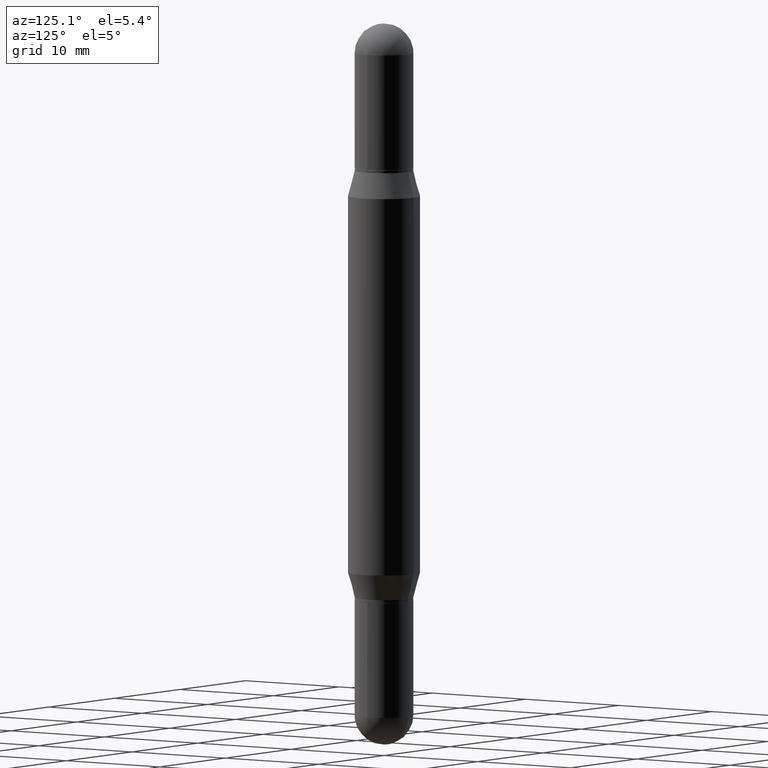
[diagram: clean part render]
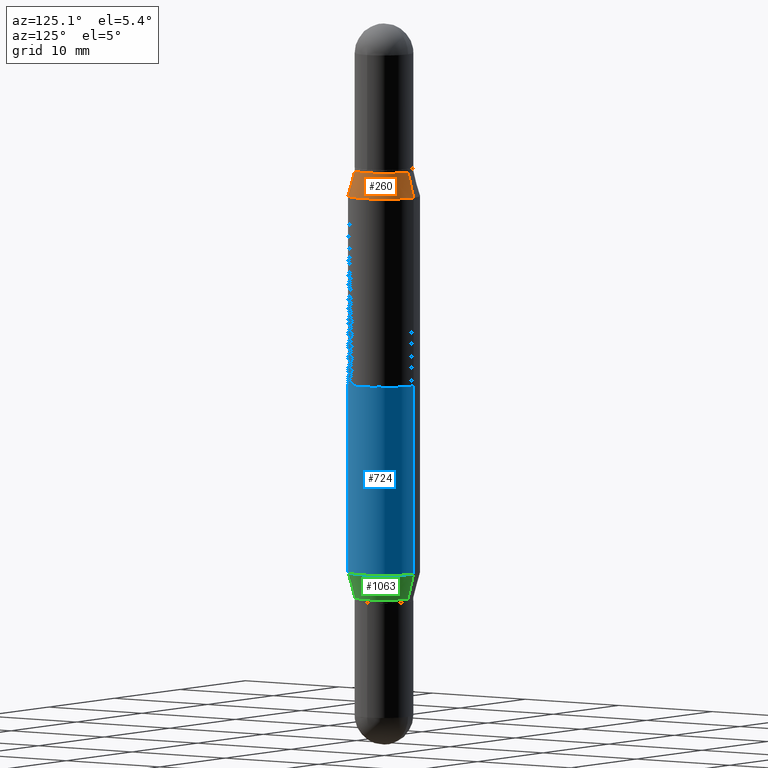
[diagram: same view with three faces highlighted in distinct colors, each labeled with its STEP entity id]
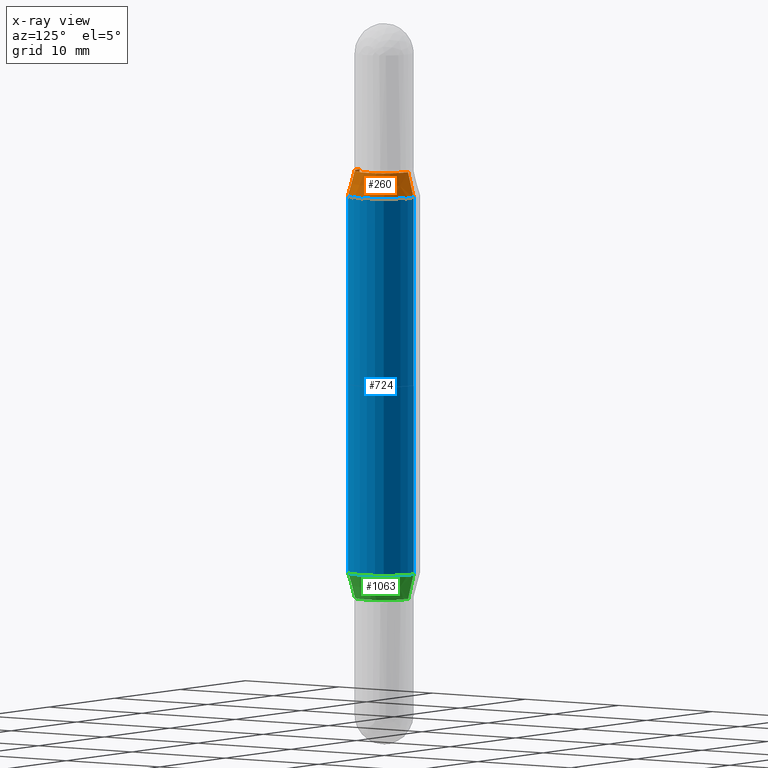
[diagram: x-ray of the same camera — body ghosted, the three highlighted faces saturated]
A machine part, auxiliary view with three faces highlighted in distinct colors.
The next image is the same camera in x-ray (body ghosted, the three faces saturated) — at least one of them is partly hidden behind the body in this view.
Their STEP definitions:

[orange] entity #260 — the highlighted conical surface has half-angle 15 deg.
#23 = VECTOR ( 'NONE', #721, 39.37007874015748143 ) ;
#34 = DIRECTION ( 'NONE',  ( -6.982962677686266711E-15, -1.000000000000000000, 3.362688323072702491E-15 ) ) ;
#58 = CIRCLE ( 'NONE', #126, 0.1250000000000000000 ) ;
#96 = CARTESIAN_POINT ( 'NONE',  ( 6.966835716737476402E-16, 0.1015499999999981973, -0.5100000000000003419 ) ) ;
#100 = CARTESIAN_POINT ( 'NONE',  ( 4.867118161721185703E-29, -1.788527271859794009E-15, -0.5100000000000000089 ) ) ;
#103 = DIRECTION ( 'NONE',  ( 2.445788020965419490E-29, 3.480071600711770532E-15, 1.000000000000000000 ) ) ;
#119 = ORIENTED_EDGE ( 'NONE', *, *, #312, .T. ) ;
#126 = AXIS2_PLACEMENT_3D ( 'NONE', #886, #103, #543 ) ;
#150 = LINE ( 'NONE', #828, #630 ) ;
#223 = ORIENTED_EDGE ( 'NONE', *, *, #1081, .F. ) ;
#260 = ADVANCED_FACE ( 'NONE', ( #882 ), #801, .T. ) ;
#267 = AXIS2_PLACEMENT_3D ( 'NONE', #100, #520, #344 ) ;
#312 = EDGE_CURVE ( 'NONE', #1074, #396, #58, .T. ) ;
#317 = EDGE_CURVE ( 'NONE', #319, #396, #603, .T. ) ;
#319 = VERTEX_POINT ( 'NONE', #96 ) ;
#327 = AXIS2_PLACEMENT_3D ( 'NONE', #885, #463, #34 ) ;
#344 = DIRECTION ( 'NONE',  ( -6.982962677686266711E-15, -1.000000000000000000, 3.362688323072702491E-15 ) ) ;
#351 = ORIENTED_EDGE ( 'NONE', *, *, #317, .F. ) ;
#396 = VERTEX_POINT ( 'NONE', #758 ) ;
#431 = EDGE_CURVE ( 'NONE', #480, #1074, #150, .T. ) ;
#449 = CARTESIAN_POINT ( 'NONE',  ( 6.966835716737475416E-16, 0.1015499999999981973, -0.5100000000000003419 ) ) ;
#463 = DIRECTION ( 'NONE',  ( 2.445788020965419490E-29, 3.480071600711770532E-15, 1.000000000000000000 ) ) ;
#480 = VERTEX_POINT ( 'NONE', #651 ) ;
#520 = DIRECTION ( 'NONE',  ( -2.445788020965419490E-29, -3.480071600711770532E-15, -1.000000000000000000 ) ) ;
#543 = DIRECTION ( 'NONE',  ( -6.982962677686265922E-15, -1.000000000000000000, 3.278217592397115862E-15 ) ) ;
#603 = LINE ( 'NONE', #449, #23 ) ;
#630 = VECTOR ( 'NONE', #833, 39.37007874015748143 ) ;
#651 = CARTESIAN_POINT ( 'NONE',  ( -7.091198599189916755E-16, -0.1015500000000017777, -0.5099999999999996758 ) ) ;
#720 = CARTESIAN_POINT ( 'NONE',  ( -8.728703347107367960E-16, -0.1250000000000021094, -0.5975165914374894749 ) ) ;
#721 = DIRECTION ( 'NONE',  ( 1.775627540710965497E-15, 0.2588190451025182415, -0.9659258262890689783 ) ) ;
#733 = CIRCLE ( 'NONE', #327, 0.1015499999999999875 ) ;
#737 = ORIENTED_EDGE ( 'NONE', *, *, #431, .T. ) ;
#758 = CARTESIAN_POINT ( 'NONE',  ( 8.575622497214877909E-16, 0.1249999999999979045, -0.5975165914374903631 ) ) ;
#801 = CONICAL_SURFACE ( 'NONE', #267, 0.1015499999999999875, 0.2617993877991502960 ) ;
#828 = CARTESIAN_POINT ( 'NONE',  ( -7.091198599189916755E-16, -0.1015500000000017777, -0.5099999999999996758 ) ) ;
#833 = DIRECTION ( 'NONE',  ( -1.807323732225330534E-15, -0.2588190451025250138, -0.9659258262890670910 ) ) ;
#882 = FACE_OUTER_BOUND ( 'NONE', #1056, .T. ) ;
#885 = CARTESIAN_POINT ( 'NONE',  ( 4.867118161721185703E-29, -1.788527271859794009E-15, -0.5100000000000000089 ) ) ;
#886 = CARTESIAN_POINT ( 'NONE',  ( 4.653071130747647170E-29, -2.093091276312497727E-15, -0.5975165914374899190 ) ) ;
#1056 = EDGE_LOOP ( 'NONE', ( #351, #223, #737, #119 ) ) ;
#1074 = VERTEX_POINT ( 'NONE', #720 ) ;
#1081 = EDGE_CURVE ( 'NONE', #480, #319, #733, .T. ) ;

[blue] entity #724 — the highlighted cylindrical surface (edge-blend (fillet) strip) has radius 3.175 mm, axis along (-0, -0, -1).
#68 = VERTEX_POINT ( 'NONE', #153 ) ;
#102 = EDGE_LOOP ( 'NONE', ( #582, #804, #188, #633 ) ) ;
#104 = CARTESIAN_POINT ( 'NONE',  ( 0.000000000000000000, -8.713869757276216901E-15, -2.500000000000000000 ) ) ;
#120 = CYLINDRICAL_SURFACE ( 'NONE', #1022, 0.1250000000000000000 ) ;
#135 = EDGE_CURVE ( 'NONE', #287, #68, #1111, .T. ) ;
#153 = CARTESIAN_POINT ( 'NONE',  ( 8.575622497214877909E-16, 0.1249999999999979045, -0.5975165914374903631 ) ) ;
#180 = AXIS2_PLACEMENT_3D ( 'NONE', #371, #635, #817 ) ;
#188 = ORIENTED_EDGE ( 'NONE', *, *, #243, .T. ) ;
#243 = EDGE_CURVE ( 'NONE', #287, #645, #807, .T. ) ;
#287 = VERTEX_POINT ( 'NONE', #957 ) ;
#371 = CARTESIAN_POINT ( 'NONE',  ( 4.653071130747647170E-29, -6.641615629110385022E-15, -1.902483408562510192 ) ) ;
#376 = AXIS2_PLACEMENT_3D ( 'NONE', #1032, #938, #502 ) ;
#418 = VECTOR ( 'NONE', #870, 39.37007874015748143 ) ;
#470 = DIRECTION ( 'NONE',  ( -2.445788020965419490E-29, -3.480071600711770532E-15, -1.000000000000000000 ) ) ;
#490 = VECTOR ( 'NONE', #527, 39.37007874015748143 ) ;
#502 = DIRECTION ( 'NONE',  ( -6.982962677686265922E-15, -1.000000000000000000, 3.278217592397115862E-15 ) ) ;
#527 = DIRECTION ( 'NONE',  ( -2.445788020965419210E-29, -3.480071600711770532E-15, -1.000000000000000000 ) ) ;
#569 = VERTEX_POINT ( 'NONE', #789 ) ;
#582 = ORIENTED_EDGE ( 'NONE', *, *, #587, .F. ) ;
#587 = EDGE_CURVE ( 'NONE', #68, #569, #771, .T. ) ;
#633 = ORIENTED_EDGE ( 'NONE', *, *, #1109, .T. ) ;
#635 = DIRECTION ( 'NONE',  ( -2.445788020965419490E-29, 3.491024205109203305E-15, 1.000000000000000000 ) ) ;
#645 = VERTEX_POINT ( 'NONE', #1066 ) ;
#697 = CARTESIAN_POINT ( 'NONE',  ( -8.728703347107832402E-16, -0.1250000000000087153, -2.499999999999999556 ) ) ;
#713 = CIRCLE ( 'NONE', #180, 0.1250000000000000000 ) ;
#724 = ADVANCED_FACE ( 'NONE', ( #904 ), #120, .T. ) ;
#735 = DIRECTION ( 'NONE',  ( -6.982962677686265922E-15, -1.000000000000000000, 4.370956789862821150E-15 ) ) ;
#771 = LINE ( 'NONE', #1039, #418 ) ;
#789 = CARTESIAN_POINT ( 'NONE',  ( 8.575622497214719151E-16, 0.1249999999999933525, -1.902483408562510636 ) ) ;
#804 = ORIENTED_EDGE ( 'NONE', *, *, #135, .F. ) ;
#807 = LINE ( 'NONE', #697, #490 ) ;
#817 = DIRECTION ( 'NONE',  ( -6.982962677686265922E-15, -1.000000000000000000, 4.370956789862821150E-15 ) ) ;
#870 = DIRECTION ( 'NONE',  ( -2.445788020965419210E-29, -3.480071600711770532E-15, -1.000000000000000000 ) ) ;
#904 = FACE_OUTER_BOUND ( 'NONE', #102, .T. ) ;
#938 = DIRECTION ( 'NONE',  ( 2.445788020965419490E-29, 3.480071600711770532E-15, 1.000000000000000000 ) ) ;
#957 = CARTESIAN_POINT ( 'NONE',  ( -8.728703347107367960E-16, -0.1250000000000021094, -0.5975165914374894749 ) ) ;
#1022 = AXIS2_PLACEMENT_3D ( 'NONE', #104, #470, #735 ) ;
#1032 = CARTESIAN_POINT ( 'NONE',  ( 4.653071130747647170E-29, -2.093091276312497727E-15, -0.5975165914374899190 ) ) ;
#1039 = CARTESIAN_POINT ( 'NONE',  ( 8.575622497214413467E-16, 0.1249999999999912847, -2.500000000000000444 ) ) ;
#1066 = CARTESIAN_POINT ( 'NONE',  ( -8.728703347107365988E-16, -0.1250000000000066336, -1.902483408562509748 ) ) ;
#1109 = EDGE_CURVE ( 'NONE', #645, #569, #713, .T. ) ;
#1111 = CIRCLE ( 'NONE', #376, 0.1250000000000000000 ) ;

[green] entity #1063 — the highlighted conical surface has half-angle 15 deg.
#27 = VECTOR ( 'NONE', #331, 39.37007874015748143 ) ;
#180 = AXIS2_PLACEMENT_3D ( 'NONE', #371, #635, #817 ) ;
#185 = CARTESIAN_POINT ( 'NONE',  ( 4.867118161721185703E-29, -6.947138168167315831E-15, -1.989999999999999991 ) ) ;
#239 = LINE ( 'NONE', #557, #1094 ) ;
#292 = ORIENTED_EDGE ( 'NONE', *, *, #950, .F. ) ;
#331 = DIRECTION ( 'NONE',  ( -1.807323732225330534E-15, -0.2588190451025182415, 0.9659258262890689783 ) ) ;
#353 = FACE_OUTER_BOUND ( 'NONE', #472, .T. ) ;
#371 = CARTESIAN_POINT ( 'NONE',  ( 4.653071130747647170E-29, -6.641615629110385022E-15, -1.902483408562510192 ) ) ;
#411 = CARTESIAN_POINT ( 'NONE',  ( -7.091198599189916755E-16, -0.1015500000000069403, -1.989999999999999769 ) ) ;
#457 = CIRCLE ( 'NONE', #1096, 0.1015499999999999875 ) ;
#472 = EDGE_LOOP ( 'NONE', ( #1080, #884, #657, #292 ) ) ;
#557 = CARTESIAN_POINT ( 'NONE',  ( 7.215561481644301649E-16, 0.1015499999999930347, -1.990000000000000435 ) ) ;
#558 = CONICAL_SURFACE ( 'NONE', #839, 0.1015499999999999875, 0.2617993877991502960 ) ;
#569 = VERTEX_POINT ( 'NONE', #789 ) ;
#635 = DIRECTION ( 'NONE',  ( -2.445788020965419490E-29, 3.491024205109203305E-15, 1.000000000000000000 ) ) ;
#642 = DIRECTION ( 'NONE',  ( -2.445788020965419490E-29, 3.491024205109203305E-15, 1.000000000000000000 ) ) ;
#645 = VERTEX_POINT ( 'NONE', #1066 ) ;
#657 = ORIENTED_EDGE ( 'NONE', *, *, #1109, .F. ) ;
#713 = CIRCLE ( 'NONE', #180, 0.1250000000000000000 ) ;
#772 = CARTESIAN_POINT ( 'NONE',  ( 4.867118161721185703E-29, -6.947138168167315831E-15, -1.989999999999999991 ) ) ;
#789 = CARTESIAN_POINT ( 'NONE',  ( 8.575622497214719151E-16, 0.1249999999999933525, -1.902483408562510636 ) ) ;
#794 = VERTEX_POINT ( 'NONE', #922 ) ;
#797 = EDGE_CURVE ( 'NONE', #794, #569, #239, .T. ) ;
#811 = DIRECTION ( 'NONE',  ( -6.982962677686266711E-15, -1.000000000000000000, 2.690150658458161914E-15 ) ) ;
#817 = DIRECTION ( 'NONE',  ( -6.982962677686265922E-15, -1.000000000000000000, 4.370956789862821150E-15 ) ) ;
#839 = AXIS2_PLACEMENT_3D ( 'NONE', #185, #642, #811 ) ;
#850 = CARTESIAN_POINT ( 'NONE',  ( -7.091198599189916755E-16, -0.1015500000000069403, -1.989999999999999769 ) ) ;
#867 = DIRECTION ( 'NONE',  ( -2.445788020965419490E-29, 3.491024205109203305E-15, 1.000000000000000000 ) ) ;
#884 = ORIENTED_EDGE ( 'NONE', *, *, #797, .T. ) ;
#889 = VERTEX_POINT ( 'NONE', #411 ) ;
#922 = CARTESIAN_POINT ( 'NONE',  ( 7.215561481644304607E-16, 0.1015499999999930347, -1.990000000000000435 ) ) ;
#940 = LINE ( 'NONE', #850, #27 ) ;
#950 = EDGE_CURVE ( 'NONE', #889, #645, #940, .T. ) ;
#962 = DIRECTION ( 'NONE',  ( -6.982962677686266711E-15, -1.000000000000000000, 2.690150658458161914E-15 ) ) ;
#997 = DIRECTION ( 'NONE',  ( 1.839019923739600710E-15, 0.2588190451025250138, 0.9659258262890670910 ) ) ;
#1014 = EDGE_CURVE ( 'NONE', #889, #794, #457, .T. ) ;
#1063 = ADVANCED_FACE ( 'NONE', ( #353 ), #558, .T. ) ;
#1066 = CARTESIAN_POINT ( 'NONE',  ( -8.728703347107365988E-16, -0.1250000000000066336, -1.902483408562509748 ) ) ;
#1080 = ORIENTED_EDGE ( 'NONE', *, *, #1014, .T. ) ;
#1094 = VECTOR ( 'NONE', #997, 39.37007874015748143 ) ;
#1096 = AXIS2_PLACEMENT_3D ( 'NONE', #772, #867, #962 ) ;
#1109 = EDGE_CURVE ( 'NONE', #645, #569, #713, .T. ) ;